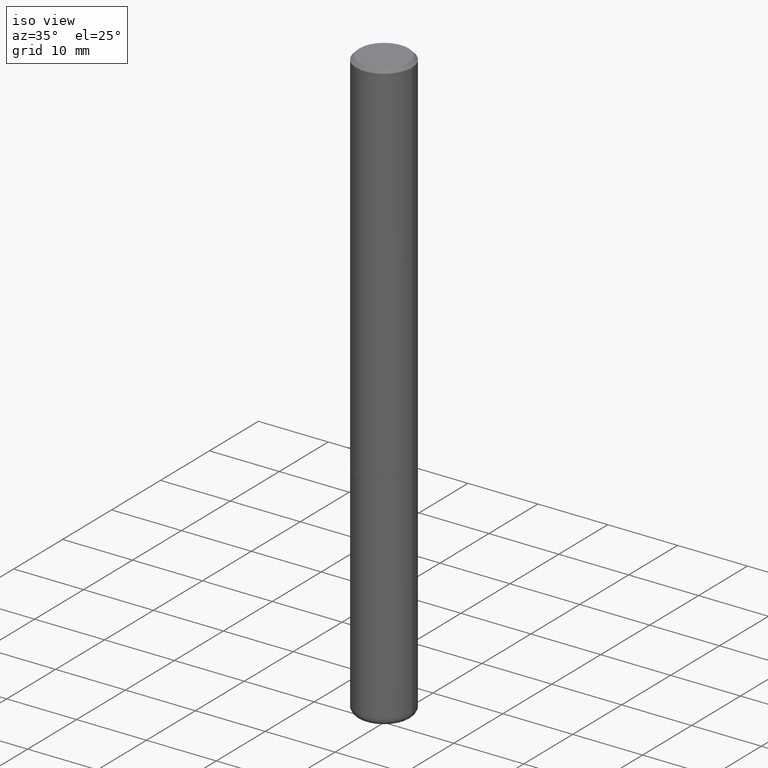
[diagram: clean part render]
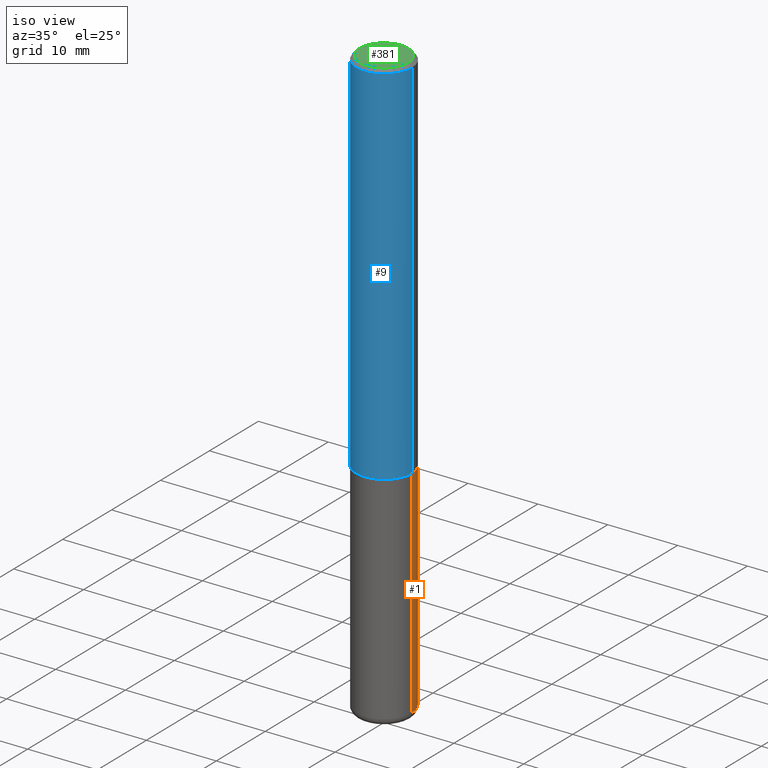
[diagram: same view with three faces highlighted in distinct colors, each labeled with its STEP entity id]
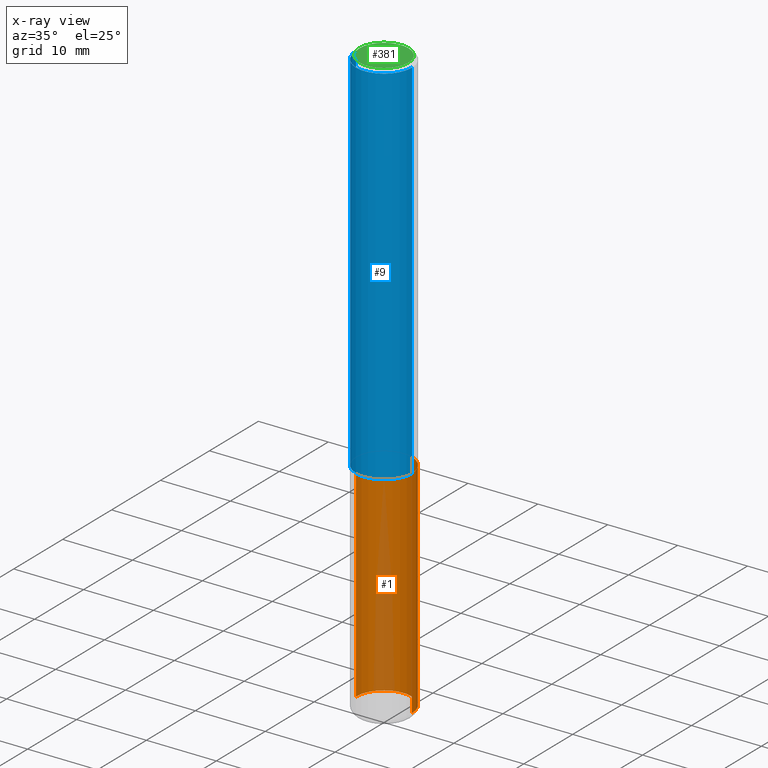
[diagram: x-ray of the same camera — body ghosted, the three highlighted faces saturated]
A machine part, iso view with three faces highlighted in distinct colors.
The next image is the same camera in x-ray (body ghosted, the three faces saturated) — at least one of them is partly hidden behind the body in this view.
Their STEP definitions:

[orange] entity #1 — the highlighted cylindrical surface (edge-blend (fillet) strip) has radius 4.0005 mm, axis along (-0, 0, 1).
#1 = ADVANCED_FACE ( 'NONE', ( #29 ), #348, .T. ) ;
#6 = VECTOR ( 'NONE', #38, 39.37007874015748143 ) ;
#28 = CARTESIAN_POINT ( 'NONE',  ( -0.1575000000000000011, -8.297071213903919899E-15, -2.086699999999999999 ) ) ;
#29 = FACE_OUTER_BOUND ( 'NONE', #384, .T. ) ;
#34 = VERTEX_POINT ( 'NONE', #316 ) ;
#36 = CIRCLE ( 'NONE', #221, 0.1575000000000000011 ) ;
#38 = DIRECTION ( 'NONE',  ( -2.445468806185136877E-29, 3.491481338843145188E-15, 1.000000000000000000 ) ) ;
#60 = CARTESIAN_POINT ( 'NONE',  ( 0.000000000000000000, 0.000000000000000000, 0.000000000000000000 ) ) ;
#65 = VERTEX_POINT ( 'NONE', #412 ) ;
#99 = EDGE_CURVE ( 'NONE', #34, #414, #36, .T. ) ;
#115 = DIRECTION ( 'NONE',  ( -2.445468806185136877E-29, 3.491481338843145188E-15, 1.000000000000000000 ) ) ;
#121 = VECTOR ( 'NONE', #115, 39.37007874015748143 ) ;
#123 = VERTEX_POINT ( 'NONE', #28 ) ;
#128 = ORIENTED_EDGE ( 'NONE', *, *, #99, .T. ) ;
#133 = DIRECTION ( 'NONE',  ( 1.000000000000000000, -6.982962677686265922E-15, 4.876176775795935232E-29 ) ) ;
#150 = CARTESIAN_POINT ( 'NONE',  ( 5.102959757866523939E-29, -7.285674109763990928E-15, -2.086699999999999999 ) ) ;
#180 = CARTESIAN_POINT ( 'NONE',  ( 0.1575000000000000011, -1.099816621735586889E-15, 7.679978421878598033E-30 ) ) ;
#187 = DIRECTION ( 'NONE',  ( -2.445468806185136597E-29, 3.491481338843145583E-15, 1.000000000000000000 ) ) ;
#196 = AXIS2_PLACEMENT_3D ( 'NONE', #60, #187, #133 ) ;
#197 = AXIS2_PLACEMENT_3D ( 'NONE', #150, #273, #271 ) ;
#221 = AXIS2_PLACEMENT_3D ( 'NONE', #303, #247, #379 ) ;
#243 = ORIENTED_EDGE ( 'NONE', *, *, #282, .F. ) ;
#247 = DIRECTION ( 'NONE',  ( -2.445468806185136597E-29, 3.491481338843145583E-15, 1.000000000000000000 ) ) ;
#271 = DIRECTION ( 'NONE',  ( 1.000000000000000000, -6.982962677686268288E-15, 0.000000000000000000 ) ) ;
#273 = DIRECTION ( 'NONE',  ( -2.445468806185136597E-29, 3.491481338843145583E-15, 1.000000000000000000 ) ) ;
#282 = EDGE_CURVE ( 'NONE', #65, #123, #394, .T. ) ;
#283 = ORIENTED_EDGE ( 'NONE', *, *, #329, .F. ) ;
#289 = CARTESIAN_POINT ( 'NONE',  ( -0.1575000000000000011, 1.119104808822157801E-15, -7.747322767151475583E-30 ) ) ;
#303 = CARTESIAN_POINT ( 'NONE',  ( 8.087409888934865187E-29, -1.154667793568816566E-14, -3.307099999999999707 ) ) ;
#316 = CARTESIAN_POINT ( 'NONE',  ( 0.1574999999999998901, -1.264649455742375235E-14, -3.307099999999999707 ) ) ;
#329 = EDGE_CURVE ( 'NONE', #34, #65, #370, .T. ) ;
#348 = CYLINDRICAL_SURFACE ( 'NONE', #196, 0.1575000000000000011 ) ;
#355 = CARTESIAN_POINT ( 'NONE',  ( -0.1574999999999998901, -1.042757312686600805E-14, -3.307099999999999707 ) ) ;
#369 = EDGE_CURVE ( 'NONE', #414, #123, #399, .T. ) ;
#370 = LINE ( 'NONE', #180, #121 ) ;
#378 = ORIENTED_EDGE ( 'NONE', *, *, #369, .T. ) ;
#379 = DIRECTION ( 'NONE',  ( 1.000000000000000000, -6.982962677686261977E-15, 0.000000000000000000 ) ) ;
#384 = EDGE_LOOP ( 'NONE', ( #128, #378, #243, #283 ) ) ;
#394 = CIRCLE ( 'NONE', #197, 0.1575000000000000011 ) ;
#399 = LINE ( 'NONE', #289, #6 ) ;
#412 = CARTESIAN_POINT ( 'NONE',  ( 0.1575000000000000011, -8.385490731499577619E-15, -2.086699999999999999 ) ) ;
#414 = VERTEX_POINT ( 'NONE', #355 ) ;

[blue] entity #9 — the highlighted cylindrical surface (edge-blend (fillet) strip) has radius 4.0005 mm, axis along (-0, 0, 1).
#2 = DIRECTION ( 'NONE',  ( -2.445468806185136597E-29, 3.491481338843145583E-15, 1.000000000000000000 ) ) ;
#9 = ADVANCED_FACE ( 'NONE', ( #256 ), #284, .T. ) ;
#12 = CARTESIAN_POINT ( 'NONE',  ( 0.1575000000000000289, -1.150358061425879472E-15, -0.02000000000000003511 ) ) ;
#15 = CARTESIAN_POINT ( 'NONE',  ( 0.1575000000000001954, -8.381999250160736190E-15, -2.085699999999999665 ) ) ;
#20 = EDGE_CURVE ( 'NONE', #52, #154, #191, .T. ) ;
#41 = CARTESIAN_POINT ( 'NONE',  ( -0.1575000000000000289, 1.029986994958724182E-15, -0.02000000000000003511 ) ) ;
#52 = VERTEX_POINT ( 'NONE', #82 ) ;
#71 = LINE ( 'NONE', #287, #359 ) ;
#82 = CARTESIAN_POINT ( 'NONE',  ( -0.1575000000000001954, -2.556901318778844062E-15, -2.085699999999999665 ) ) ;
#93 = EDGE_CURVE ( 'NONE', #182, #208, #118, .T. ) ;
#118 = CIRCLE ( 'NONE', #298, 0.1575000000000000289 ) ;
#131 = ORIENTED_EDGE ( 'NONE', *, *, #142, .F. ) ;
#140 = CARTESIAN_POINT ( 'NONE',  ( 0.1575000000000000844, -1.099816621735587677E-15, 7.679978421878603638E-30 ) ) ;
#141 = AXIS2_PLACEMENT_3D ( 'NONE', #308, #350, #183 ) ;
#142 = EDGE_CURVE ( 'NONE', #52, #182, #71, .T. ) ;
#151 = ORIENTED_EDGE ( 'NONE', *, *, #224, .T. ) ;
#152 = AXIS2_PLACEMENT_3D ( 'NONE', #389, #2, #161 ) ;
#154 = VERTEX_POINT ( 'NONE', #15 ) ;
#161 = DIRECTION ( 'NONE',  ( 1.000000000000000000, -6.982962677686267499E-15, 4.876176775795936353E-29 ) ) ;
#176 = EDGE_LOOP ( 'NONE', ( #131, #185, #151, #341 ) ) ;
#182 = VERTEX_POINT ( 'NONE', #41 ) ;
#183 = DIRECTION ( 'NONE',  ( 1.000000000000000000, -6.982962677686265922E-15, 0.000000000000000000 ) ) ;
#185 = ORIENTED_EDGE ( 'NONE', *, *, #20, .T. ) ;
#191 = CIRCLE ( 'NONE', #141, 0.1575000000000001954 ) ;
#198 = DIRECTION ( 'NONE',  ( -2.445468806185136877E-29, 3.491481338843145188E-15, 1.000000000000000000 ) ) ;
#206 = VECTOR ( 'NONE', #198, 39.37007874015748143 ) ;
#208 = VERTEX_POINT ( 'NONE', #12 ) ;
#210 = DIRECTION ( 'NONE',  ( 1.000000000000000000, -6.982962677686267499E-15, 0.000000000000000000 ) ) ;
#218 = CARTESIAN_POINT ( 'NONE',  ( 4.890937612370281041E-31, -6.982962677686302702E-17, -0.02000000000000003511 ) ) ;
#224 = EDGE_CURVE ( 'NONE', #154, #208, #364, .T. ) ;
#256 = FACE_OUTER_BOUND ( 'NONE', #176, .T. ) ;
#284 = CYLINDRICAL_SURFACE ( 'NONE', #152, 0.1575000000000000844 ) ;
#287 = CARTESIAN_POINT ( 'NONE',  ( -0.1575000000000000844, 1.119104808822158392E-15, -7.747322767151481189E-30 ) ) ;
#291 = DIRECTION ( 'NONE',  ( -2.445468806185136877E-29, 3.491481338843145188E-15, 1.000000000000000000 ) ) ;
#298 = AXIS2_PLACEMENT_3D ( 'NONE', #218, #343, #210 ) ;
#308 = CARTESIAN_POINT ( 'NONE',  ( 5.100514289060338336E-29, -7.282182628425147921E-15, -2.085699999999999665 ) ) ;
#341 = ORIENTED_EDGE ( 'NONE', *, *, #93, .F. ) ;
#343 = DIRECTION ( 'NONE',  ( -2.445468806185136597E-29, 3.491481338843145583E-15, 1.000000000000000000 ) ) ;
#350 = DIRECTION ( 'NONE',  ( -2.445468806185136597E-29, 3.491481338843145583E-15, 1.000000000000000000 ) ) ;
#359 = VECTOR ( 'NONE', #291, 39.37007874015748143 ) ;
#364 = LINE ( 'NONE', #140, #206 ) ;
#389 = CARTESIAN_POINT ( 'NONE',  ( 0.000000000000000000, 0.000000000000000000, 0.000000000000000000 ) ) ;

[green] entity #381 — the highlighted planar face has unit normal (0, -0, -1).
#10 = CARTESIAN_POINT ( 'NONE',  ( 9.601573681818600950E-16, 0.1374999999999997891, -3.797686405735721404E-16 ) ) ;
#21 = CARTESIAN_POINT ( 'NONE',  ( -4.906101647375532782E-45, 7.004612900788102525E-31, 2.006200870347193393E-16 ) ) ;
#27 = VERTEX_POINT ( 'NONE', #64 ) ;
#64 = CARTESIAN_POINT ( 'NONE',  ( -0.1374999999999997891, 9.950721815702925329E-16, 2.006200870347125108E-16 ) ) ;
#81 = AXIS2_PLACEMENT_3D ( 'NONE', #323, #395, #107 ) ;
#104 = FACE_OUTER_BOUND ( 'NONE', #275, .T. ) ;
#107 = DIRECTION ( 'NONE',  ( 1.000000000000000000, -6.982962677686267499E-15, 4.874794762600771100E-29 ) ) ;
#108 = CARTESIAN_POINT ( 'NONE',  ( 0.1374999999999997891, -1.046838268059731505E-15, 2.006200870347263405E-16 ) ) ;
#112 = AXIS2_PLACEMENT_3D ( 'NONE', #10, #260, #265 ) ;
#138 = PLANE ( 'NONE',  #112 ) ;
#165 = AXIS2_PLACEMENT_3D ( 'NONE', #21, #274, #410 ) ;
#189 = ORIENTED_EDGE ( 'NONE', *, *, #357, .T. ) ;
#260 = DIRECTION ( 'NONE',  ( 2.438088387897960049E-29, -3.491481338843145188E-15, -1.000000000000000000 ) ) ;
#265 = DIRECTION ( 'NONE',  ( -1.000000000000000000, 6.982962677686265922E-15, -4.876176775795935793E-29 ) ) ;
#274 = DIRECTION ( 'NONE',  ( -2.445468806185136597E-29, 3.491481338843145583E-15, 1.000000000000000000 ) ) ;
#275 = EDGE_LOOP ( 'NONE', ( #189, #339 ) ) ;
#277 = VERTEX_POINT ( 'NONE', #108 ) ;
#323 = CARTESIAN_POINT ( 'NONE',  ( -4.906101647375532782E-45, 7.004612900788102525E-31, 2.006200870347193393E-16 ) ) ;
#339 = ORIENTED_EDGE ( 'NONE', *, *, #375, .T. ) ;
#344 = CIRCLE ( 'NONE', #165, 0.1374999999999997891 ) ;
#357 = EDGE_CURVE ( 'NONE', #27, #277, #344, .T. ) ;
#375 = EDGE_CURVE ( 'NONE', #277, #27, #409, .T. ) ;
#381 = ADVANCED_FACE ( 'NONE', ( #104 ), #138, .F. ) ;
#395 = DIRECTION ( 'NONE',  ( -2.445468806185136597E-29, 3.491481338843145583E-15, 1.000000000000000000 ) ) ;
#409 = CIRCLE ( 'NONE', #81, 0.1374999999999997891 ) ;
#410 = DIRECTION ( 'NONE',  ( 1.000000000000000000, -6.982962677686267499E-15, 4.874794762600771100E-29 ) ) ;